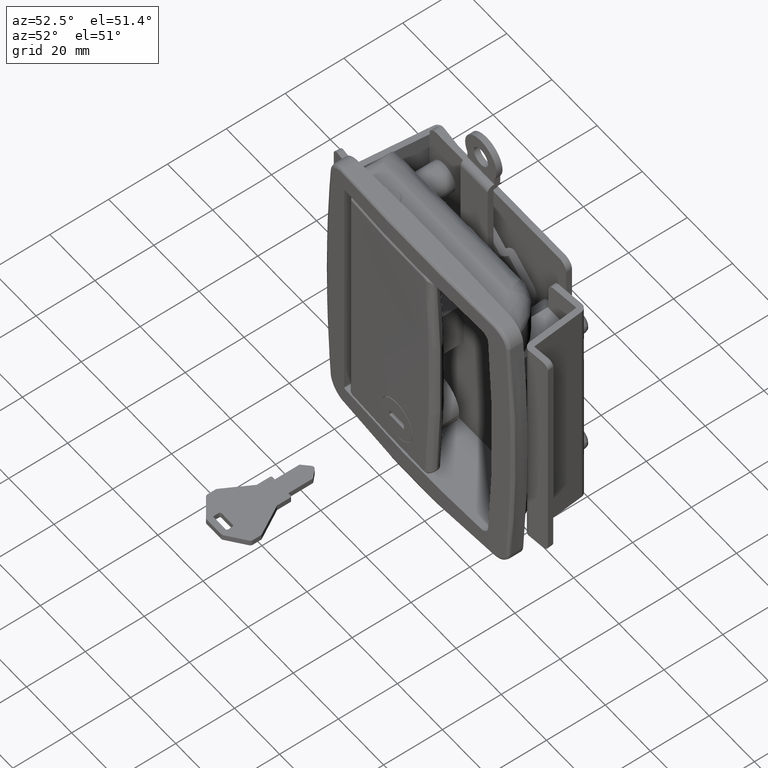
[diagram: clean part render]
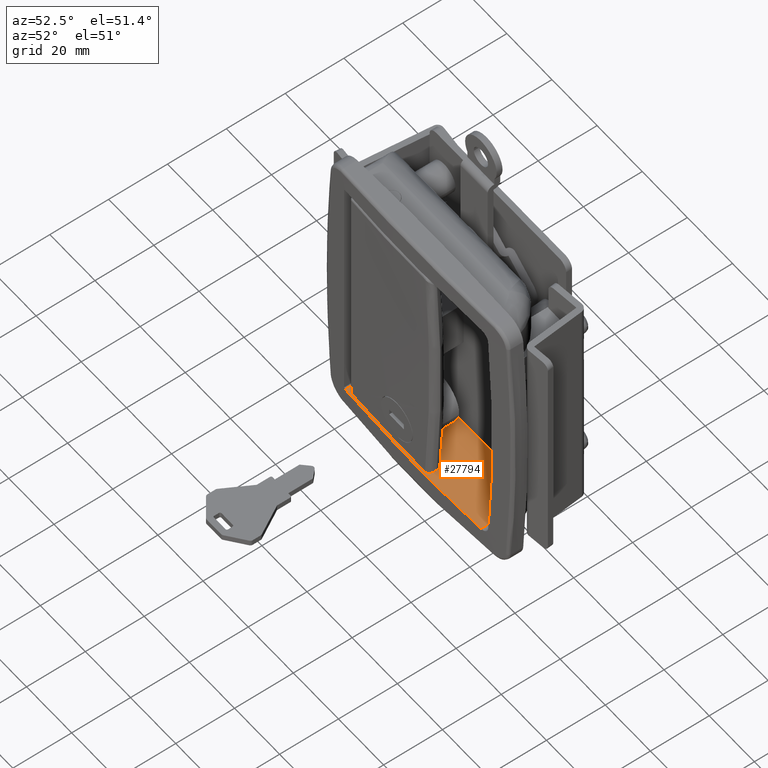
[diagram: same view with one face highlighted and labeled with its STEP entity id]
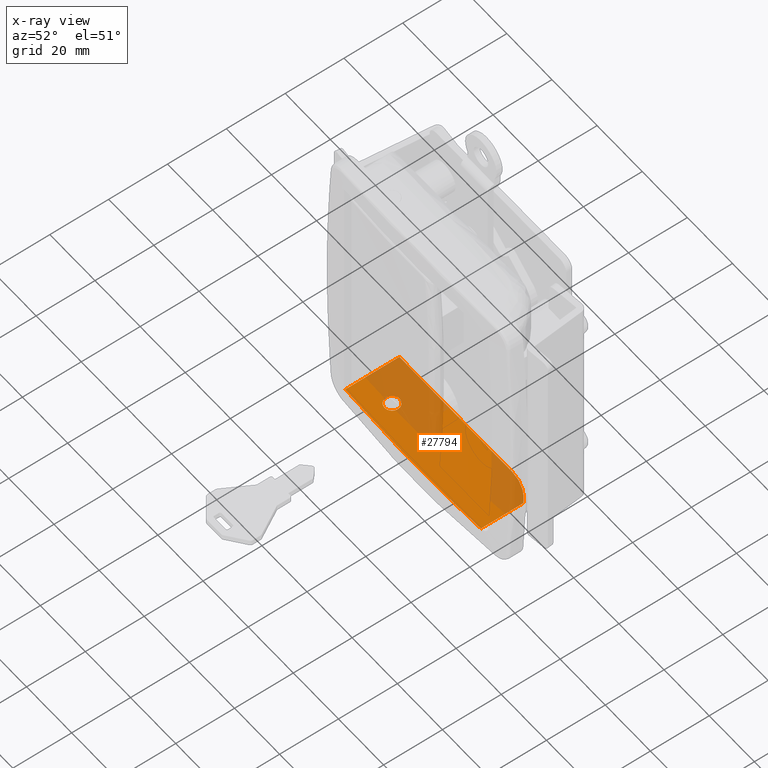
[diagram: x-ray of the same camera — body ghosted, the highlighted face saturated]
A machine part, auxiliary view. The second image highlights one B-rep face of the part: STEP entity #27794.
The next image is the same camera in x-ray: the body ghosted, the highlighted face saturated — about 38% of this face is hidden behind the body in this view.
In plain terms, the highlighted face is a freeform B-spline surface patch.
Its self-contained STEP definition (entity closure, byte-faithful):
#20066=CARTESIAN_POINT('',(23.550000000000001,3.500000000000000,-43.0));
#20067=VERTEX_POINT('',#20066);
#20068=CARTESIAN_POINT('',(21.200070694143431,0.957860798983469,-43.0));
#20069=VERTEX_POINT('',#20068);
#20070=CARTESIAN_POINT('',(23.550000000000001,3.500000000000000,-43.0));
#20071=CARTESIAN_POINT('',(23.550000000000008,1.142804246341182,-43.000000000000007));
#20072=CARTESIAN_POINT('',(21.200070694143427,0.957860798983469,-43.0));
#20080=(BOUNDED_CURVE()B_SPLINE_CURVE(2,(#20070,#20071,#20072),.UNSPECIFIED.,.F.,.U.)B_SPLINE_CURVE_WITH_KNOTS((3,3),(0.0,0.236331300627720),.UNSPECIFIED.)CURVE()GEOMETRIC_REPRESENTATION_ITEM()RATIONAL_B_SPLINE_CURVE((1.0,0.723120658611109,0.969723356161283))REPRESENTATION_ITEM(''));
#20081=EDGE_CURVE('',#20067,#20069,#20080,.T.);
#20083=CARTESIAN_POINT('',(20.799929305856569,6.042139201016531,-43.0));
#20084=VERTEX_POINT('',#20083);
#20085=CARTESIAN_POINT('',(20.799929305856576,6.042139201016531,-43.0));
#20086=CARTESIAN_POINT('',(20.899810227092853,6.050000000000000,-43.0));
#20087=CARTESIAN_POINT('',(21.0,6.050000000000000,-43.0));
#20088=CARTESIAN_POINT('',(23.550000000000004,6.049999999999999,-42.999999999999993));
#20089=CARTESIAN_POINT('',(23.550000000000001,3.500000000000000,-43.0));
#20097=(BOUNDED_CURVE()B_SPLINE_CURVE(2,(#20085,#20086,#20087,#20088,#20089),.UNSPECIFIED.,.F.,.U.)B_SPLINE_CURVE_WITH_KNOTS((3,2,3),(0.736331300627720,0.750000000000000,1.0),.UNSPECIFIED.)CURVE()GEOMETRIC_REPRESENTATION_ITEM()RATIONAL_B_SPLINE_CURVE((0.969723356161284,0.983986122575438,1.0,0.707106781186548,1.0))REPRESENTATION_ITEM(''));
#20098=EDGE_CURVE('',#20084,#20067,#20097,.T.);
#20165=CARTESIAN_POINT('',(18.449999999999999,3.500000000000000,-43.0));
#20166=VERTEX_POINT('',#20165);
#20167=CARTESIAN_POINT('',(21.200070694143427,0.957860798983469,-43.0));
#20168=CARTESIAN_POINT('',(21.100189772907157,0.950000000000000,-43.000000000000014));
#20169=CARTESIAN_POINT('',(21.0,0.950000000000000,-43.0));
#20170=CARTESIAN_POINT('',(18.450000000000010,0.950000000000000,-42.999999999999993));
#20171=CARTESIAN_POINT('',(18.449999999999999,3.500000000000000,-43.0));
#20179=(BOUNDED_CURVE()B_SPLINE_CURVE(2,(#20167,#20168,#20169,#20170,#20171),.UNSPECIFIED.,.F.,.U.)B_SPLINE_CURVE_WITH_KNOTS((3,2,3),(0.236331300627720,0.250000000000000,0.500000000000000),.UNSPECIFIED.)CURVE()GEOMETRIC_REPRESENTATION_ITEM()RATIONAL_B_SPLINE_CURVE((0.969723356161283,0.983986122575438,1.0,0.707106781186548,1.0))REPRESENTATION_ITEM(''));
#20180=EDGE_CURVE('',#20069,#20166,#20179,.T.);
#20214=CARTESIAN_POINT('',(18.449999999999999,3.500000000000000,-43.0));
#20215=CARTESIAN_POINT('',(18.450000000000006,5.857195753658831,-42.999999999999993));
#20216=CARTESIAN_POINT('',(20.799929305856569,6.042139201016532,-43.000000000000007));
#20224=(BOUNDED_CURVE()B_SPLINE_CURVE(2,(#20214,#20215,#20216),.UNSPECIFIED.,.F.,.U.)B_SPLINE_CURVE_WITH_KNOTS((3,3),(0.500000000000000,0.736331300627721),.UNSPECIFIED.)CURVE()GEOMETRIC_REPRESENTATION_ITEM()RATIONAL_B_SPLINE_CURVE((1.0,0.723120658611108,0.969723356161285))REPRESENTATION_ITEM(''));
#20225=EDGE_CURVE('',#20166,#20084,#20224,.T.);
#24746=CARTESIAN_POINT('',(59.500000000000000,14.800000000000001,-43.0));
#24747=VERTEX_POINT('',#24746);
#24753=CARTESIAN_POINT('',(69.887726999999899,10.621050215828040,-43.0));
#24754=VERTEX_POINT('',#24753);
#24755=CARTESIAN_POINT('',(59.500000000000000,14.799999999999979,-43.0));
#24756=CARTESIAN_POINT('',(65.534452653846159,14.799999999999986,-43.0));
#24757=CARTESIAN_POINT('',(69.887726999999913,10.621050215828051,-43.0));
#24765=(BOUNDED_CURVE()B_SPLINE_CURVE(2,(#24755,#24756,#24757),.UNSPECIFIED.,.F.,.U.)CURVE()GEOMETRIC_REPRESENTATION_ITEM()QUASI_UNIFORM_CURVE()RATIONAL_B_SPLINE_CURVE((1.0,0.927740089605346,1.0))REPRESENTATION_ITEM(''));
#24766=EDGE_CURVE('',#24747,#24754,#24765,.T.);
#24912=CARTESIAN_POINT('',(9.500000000000000,14.800000000000001,-43.0));
#24913=VERTEX_POINT('',#24912);
#24927=CARTESIAN_POINT('',(59.500000000000000,14.800000000000001,-43.0));
#24928=CARTESIAN_POINT('',(9.500000000000000,14.800000000000001,-43.0));
#24929=QUASI_UNIFORM_CURVE('',1,(#24927,#24928),.UNSPECIFIED.,.F.,.U.);
#24930=EDGE_CURVE('',#24747,#24913,#24929,.T.);
#25056=CARTESIAN_POINT('',(9.500000000000000,-3.608615918084370,-43.0));
#25057=VERTEX_POINT('',#25056);
#25058=CARTESIAN_POINT('',(9.500000000000000,14.800000000000001,-43.0));
#25059=CARTESIAN_POINT('',(9.500000000000000,-3.608615918084370,-43.0));
#25060=QUASI_UNIFORM_CURVE('',1,(#25058,#25059),.UNSPECIFIED.,.F.,.U.);
#25061=EDGE_CURVE('',#24913,#25057,#25060,.T.);
#25113=CARTESIAN_POINT('',(69.887726999999899,-3.798618456860135,-43.0));
#25114=VERTEX_POINT('',#25113);
#25115=CARTESIAN_POINT('',(69.887726999999899,10.621050215828040,-43.0));
#25116=CARTESIAN_POINT('',(69.887726999999899,-3.798618456860135,-43.0));
#25117=QUASI_UNIFORM_CURVE('',1,(#25115,#25116),.UNSPECIFIED.,.F.,.U.);
#25118=EDGE_CURVE('',#24754,#25114,#25117,.T.);
#27757=CARTESIAN_POINT('',(9.500000000000036,-3.608615918084257,-43.0));
#27758=CARTESIAN_POINT('',(39.688866512681535,-5.291789155772997,-43.000000000000007));
#27759=CARTESIAN_POINT('',(69.887726999999899,-3.798618456860026,-43.0));
#27767=(BOUNDED_CURVE()B_SPLINE_CURVE(2,(#27757,#27758,#27759),.UNSPECIFIED.,.F.,.U.)CURVE()GEOMETRIC_REPRESENTATION_ITEM()QUASI_UNIFORM_CURVE()RATIONAL_B_SPLINE_CURVE((1.0,0.998619527816011,1.0))REPRESENTATION_ITEM(''));
#27768=EDGE_CURVE('',#25057,#25114,#27767,.T.);
#27776=CARTESIAN_POINT('',(6.483633369140515,-5.463996547632829,-43.0));
#27777=CARTESIAN_POINT('',(72.904090931317626,-5.463996547632829,-43.0));
#27778=CARTESIAN_POINT('',(6.483633369140515,15.764033652685720,-43.0));
#27779=CARTESIAN_POINT('',(72.904090931317626,15.764033652685720,-43.0));
#27780=B_SPLINE_SURFACE_WITH_KNOTS('',1,1,((#27776,#27778),(#27777,#27779)),.UNSPECIFIED.,.F.,.F.,.U.,(2,2),(2,2),(0.0,66.420457562177106),(0.0,21.228030200318550),.UNSPECIFIED.);
#27781=ORIENTED_EDGE('',*,*,#25061,.T.);
#27782=ORIENTED_EDGE('',*,*,#27768,.T.);
#27783=ORIENTED_EDGE('',*,*,#25118,.F.);
#27784=ORIENTED_EDGE('',*,*,#24766,.F.);
#27785=ORIENTED_EDGE('',*,*,#24930,.T.);
#27786=EDGE_LOOP('',(#27781,#27782,#27783,#27784,#27785));
#27787=FACE_OUTER_BOUND('',#27786,.T.);
#27788=ORIENTED_EDGE('',*,*,#20225,.T.);
#27789=ORIENTED_EDGE('',*,*,#20098,.T.);
#27790=ORIENTED_EDGE('',*,*,#20081,.T.);
#27791=ORIENTED_EDGE('',*,*,#20180,.T.);
#27792=EDGE_LOOP('',(#27788,#27789,#27790,#27791));
#27793=FACE_BOUND('',#27792,.T.);
#27794=ADVANCED_FACE('',(#27787,#27793),#27780,.T.);